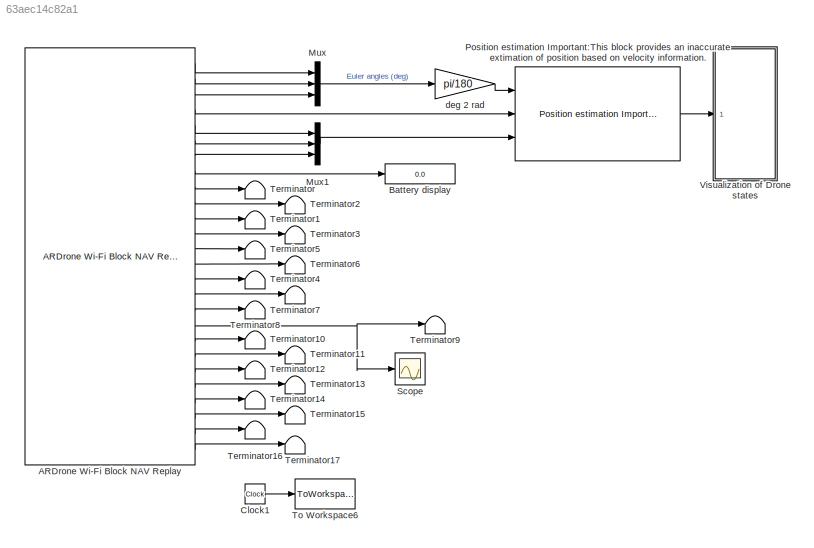
MODEL slx_63aec14c82a1
KIND model
CONFIG AbsTol = auto
CONFIG EnableMultiTasking = on
CONFIG FixedStep = sampleTime
CONFIG MaxStep = auto
CONFIG MinStep = auto
CONFIG RelTol = 1e-3
CONFIG SampleTimeConstraint = Unconstrained
CONFIG Solver = ode1
CONFIG SolverName = ode1
CONFIG StartTime = 0.0
CONFIG StopTime = inf
BLOCK [Reference] ARDrone Wi-Fi  Block NAV Replay  REF=ARBlocks/ARDrone Wi-Fi  Block NAV Replay
  Ports = [0, 26]
  SourceBlock = ARBlocks/ARDrone Wi-Fi  Block NAV Replay
  SourceType = SubSystem
BLOCK [Display] Battery display
  Decimation = 1
  Ports = [1]
BLOCK [Clock] Clock1
BLOCK [Mux] Mux
  DisplayOption = bar
  Inputs = 3
  Ports = [3, 1]
BLOCK [Mux] Mux1
  DisplayOption = bar
  Inputs = 3
  Ports = [3, 1]
BLOCK [Reference] Position estimation Important:This block provides an inaccurate extimation of position based on  velocity information.   REF=ARBlocks/Position estimation
Important:This block provides an 
inaccurate extimation of position 
based on  velocity information. 
  Ports = [3, 1]
  SourceBlock = ARBlocks/Position estimation\nImportant:This block provides an \ninaccurate extimation of position \nbased on  velocity information.
  SourceType = SubSystem
BLOCK [Scope] Scope
  NumInputPorts = 1
  Ports = [1]
  ScopeSpecificationString = Simulink.scopes.TimeScopeBlockCfg('CurrentConfiguration', extmgr.ConfigurationSet(extmgr.Configuration('Core','General UI',true),extmgr.Configuration('Core','Source UI',true),extmgr.Configuration('Sources','WiredSimulink',true,'DataLoggingVariableName','ScopeData1'),extmgr.Configuration('Visuals','Time Domain',true,'SerializedDisplays',{struct('MinYLimReal','-0.58202','MaxYLimReal','1.32261','YLab...<+1359ch>
BLOCK [Terminator] Terminator
BLOCK [Terminator] Terminator1
BLOCK [Terminator] Terminator10
BLOCK [Terminator] Terminator11
BLOCK [Terminator] Terminator12
BLOCK [Terminator] Terminator13
BLOCK [Terminator] Terminator14
BLOCK [Terminator] Terminator15
BLOCK [Terminator] Terminator16
BLOCK [Terminator] Terminator17
BLOCK [Terminator] Terminator2
BLOCK [Terminator] Terminator3
BLOCK [Terminator] Terminator4
BLOCK [Terminator] Terminator5
BLOCK [Terminator] Terminator6
BLOCK [Terminator] Terminator7
BLOCK [Terminator] Terminator8
BLOCK [Terminator] Terminator9
BLOCK [ToWorkspace] To Workspace6
  MaxDataPoints = inf
  Ports = [1]
  SampleTime = sampleTime
  VariableName = timeRT
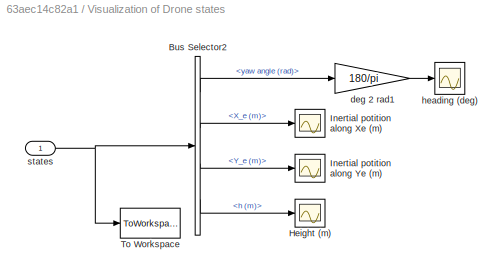
BLOCK [SubSystem] Visualization of Drone states
  Ports = [1]
  RequestExecContextInheritance = off
  Variant = off
BLOCK [BusSelector] Visualization of Drone states/Bus Selector2
  OutputAsBus = off
  OutputSignals = yaw angle (rad),X_e (m),Y_e (m),h (m)
  Ports = [1, 4]
BLOCK [Scope] Visualization of Drone states/Height (m)
  NumInputPorts = 1
  Ports = [1]
  ScopeSpecificationString = Simulink.scopes.TimeScopeBlockCfg('CurrentConfiguration', extmgr.ConfigurationSet(extmgr.Configuration('Core','General UI',true),extmgr.Configuration('Core','Source UI',true),extmgr.Configuration('Sources','WiredSimulink',true,'DataLoggingVariableName','ScopeData5','DataLoggingSaveFormat','StructureWithTime','DataLoggingMaxPoints','500000','DataLoggingLimitDataPoints',true,'DataLoggingDecimation',...<+1729ch>
BLOCK [Scope] Visualization of Drone states/Inertial potition along Xe (m)
  NumInputPorts = 1
  Ports = [1]
  ScopeSpecificationString = Simulink.scopes.TimeScopeBlockCfg('CurrentConfiguration', extmgr.ConfigurationSet(extmgr.Configuration('Core','General UI',true),extmgr.Configuration('Core','Source UI',true),extmgr.Configuration('Sources','WiredSimulink',true,'DataLoggingVariableName','ScopeData3','DataLoggingSaveFormat','StructureWithTime','DataLoggingMaxPoints','500000','DataLoggingLimitDataPoints',true,'DataLoggingDecimation',...<+1732ch>
BLOCK [Scope] Visualization of Drone states/Inertial potition along Ye (m)
  NumInputPorts = 1
  Ports = [1]
  ScopeSpecificationString = Simulink.scopes.TimeScopeBlockCfg('CurrentConfiguration', extmgr.ConfigurationSet(extmgr.Configuration('Core','General UI',true),extmgr.Configuration('Core','Source UI',true),extmgr.Configuration('Sources','WiredSimulink',true,'DataLoggingVariableName','ScopeData4','DataLoggingSaveFormat','StructureWithTime','DataLoggingMaxPoints','500000','DataLoggingLimitDataPoints',true,'DataLoggingDecimation',...<+1733ch>
BLOCK [ToWorkspace] Visualization of Drone states/To Workspace
  MaxDataPoints = inf
  Ports = [1]
  SampleTime = -1
  SaveFormat = Structure With Time
  VariableName = states
BLOCK [Gain] Visualization of Drone states/deg 2 rad1
  Gain = 180/pi
  OutDataTypeStr = Inherit: Inherit via internal rule
  ParamDataTypeStr = Inherit: Inherit via internal rule
  SaturateOnIntegerOverflow = off
BLOCK [Scope] Visualization of Drone states/heading (deg)
  NumInputPorts = 1
  Ports = [1]
  ScopeSpecificationString = Simulink.scopes.TimeScopeBlockCfg('CurrentConfiguration', extmgr.ConfigurationSet(extmgr.Configuration('Core','General UI',true),extmgr.Configuration('Core','Source UI',true),extmgr.Configuration('Sources','WiredSimulink',true,'DataLoggingVariableName','ScopeData2','DataLoggingSaveFormat','StructureWithTime','DataLoggingMaxPoints','500000','DataLoggingLimitDataPoints',true,'DataLoggingDecimation',...<+1737ch>
BLOCK [Inport] Visualization of Drone states/states
  IconDisplay = Port number
BLOCK [Gain] deg 2 rad
  Gain = pi/180
  OutDataTypeStr = Inherit: Inherit via internal rule
  ParamDataTypeStr = Inherit: Inherit via internal rule
  SaturateOnIntegerOverflow = off
LINE ARDrone Wi-Fi  Block NAV Replay:1 -> Mux:1
LINE ARDrone Wi-Fi  Block NAV Replay:10 -> Terminator2:1
LINE ARDrone Wi-Fi  Block NAV Replay:11 -> Terminator1:1
LINE ARDrone Wi-Fi  Block NAV Replay:12 -> Terminator3:1
LINE ARDrone Wi-Fi  Block NAV Replay:13 -> Terminator5:1
LINE ARDrone Wi-Fi  Block NAV Replay:14 -> Terminator6:1
LINE ARDrone Wi-Fi  Block NAV Replay:15 -> Terminator4:1
LINE ARDrone Wi-Fi  Block NAV Replay:16 -> Terminator7:1
LINE ARDrone Wi-Fi  Block NAV Replay:17 -> Terminator8:1
NET ARDrone Wi-Fi  Block NAV Replay:18 -> Scope:1, Terminator9:1
LINE ARDrone Wi-Fi  Block NAV Replay:19 -> Terminator10:1
LINE ARDrone Wi-Fi  Block NAV Replay:2 -> Mux:2
LINE ARDrone Wi-Fi  Block NAV Replay:20 -> Terminator11:1
LINE ARDrone Wi-Fi  Block NAV Replay:21 -> Terminator12:1
LINE ARDrone Wi-Fi  Block NAV Replay:22 -> Terminator13:1
LINE ARDrone Wi-Fi  Block NAV Replay:23 -> Terminator14:1
LINE ARDrone Wi-Fi  Block NAV Replay:24 -> Terminator15:1
LINE ARDrone Wi-Fi  Block NAV Replay:25 -> Terminator16:1
LINE ARDrone Wi-Fi  Block NAV Replay:26 -> Terminator17:1
LINE ARDrone Wi-Fi  Block NAV Replay:3 -> Mux:3
LINE ARDrone Wi-Fi  Block NAV Replay:4 -> Position estimation Important:This block provides an inaccurate extimation of position based on  velocity information. :2
LINE ARDrone Wi-Fi  Block NAV Replay:5 -> Mux1:1
LINE ARDrone Wi-Fi  Block NAV Replay:6 -> Mux1:2
LINE ARDrone Wi-Fi  Block NAV Replay:7 -> Mux1:3
LINE ARDrone Wi-Fi  Block NAV Replay:8 -> Battery display:1
LINE ARDrone Wi-Fi  Block NAV Replay:9 -> Terminator:1
LINE Clock1:1 -> To Workspace6:1
LINE Mux1:1 -> Position estimation Important:This block provides an inaccurate extimation of position based on  velocity information. :3
LINE Mux:1 -> deg 2 rad:1
LINE Position estimation Important:This block provides an inaccurate extimation of position based on  velocity information. :1 -> Visualization of Drone states:1
LINE Visualization of Drone states/Bus Selector2:1 -> Visualization of Drone states/deg 2 rad1:1
LINE Visualization of Drone states/Bus Selector2:2 -> Visualization of Drone states/Inertial potition along Xe (m):1
LINE Visualization of Drone states/Bus Selector2:3 -> Visualization of Drone states/Inertial potition along Ye (m):1
LINE Visualization of Drone states/Bus Selector2:4 -> Visualization of Drone states/Height (m):1
LINE Visualization of Drone states/deg 2 rad1:1 -> Visualization of Drone states/heading (deg):1
NET Visualization of Drone states/states:1 -> Visualization of Drone states/Bus Selector2:1, Visualization of Drone states/To Workspace:1
LINE deg 2 rad:1 -> Position estimation Important:This block provides an inaccurate extimation of position based on  velocity information. :1
note: NET lines group one-source signal fan-out (src -> all destinations, sorted); 1:1 wires keep LINE
